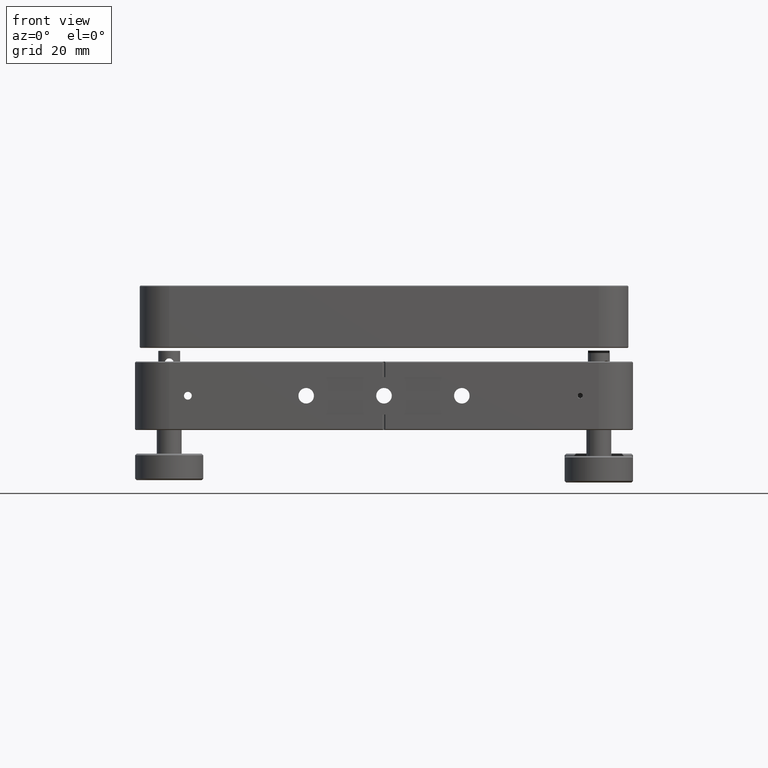
[diagram: clean part render]
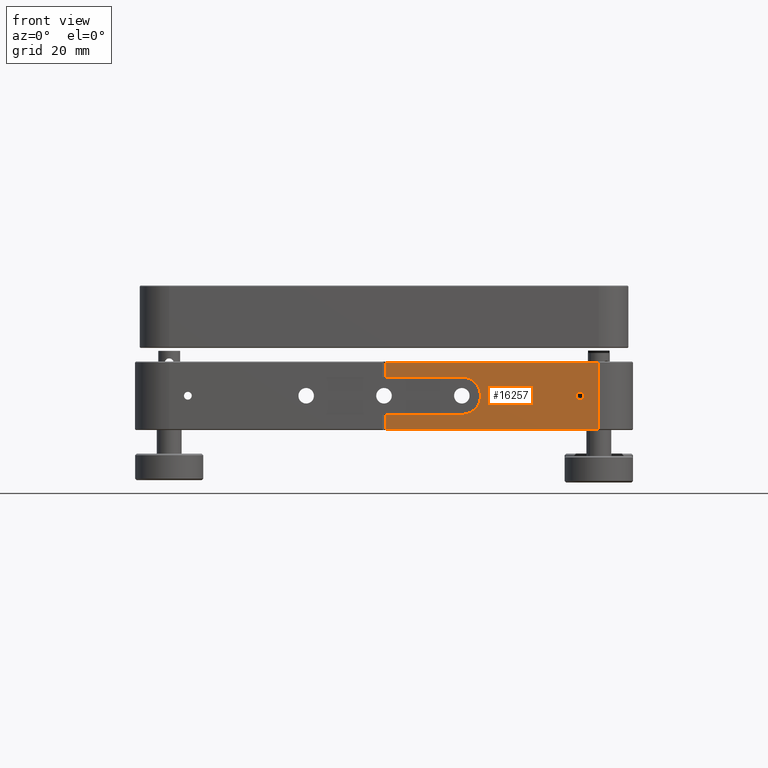
[diagram: same view with one face highlighted and labeled with its STEP entity id]
A machine part, front view. The second image highlights one B-rep face of the part: STEP entity #16257.
In plain terms, the highlighted planar face has unit normal (0, 1, 0).
Its self-contained STEP definition (entity closure, byte-faithful):
#274 = EDGE_CURVE ( 'NONE', #8382, #3429, #1125, .T. ) ;
#449 = EDGE_LOOP ( 'NONE', ( #7910, #1419 ) ) ;
#459 = DIRECTION ( 'NONE',  ( 0.000000000000000000, 0.000000000000000000, -1.000000000000000000 ) ) ;
#888 = CARTESIAN_POINT ( 'NONE',  ( 0.4999999999999935052, -80.00000000000001421, 11.00000000000000000 ) ) ;
#1125 = LINE ( 'NONE', #2353, #14467 ) ;
#1301 = CARTESIAN_POINT ( 'NONE',  ( 0.4999999999999935052, -80.00000000000001421, 10.69999999999994955 ) ) ;
#1419 = ORIENTED_EDGE ( 'NONE', *, *, #6440, .F. ) ;
#2017 = DIRECTION ( 'NONE',  ( -0.000000000000000000, -0.000000000000000000, -1.000000000000000000 ) ) ;
#2067 = EDGE_CURVE ( 'NONE', #13860, #6366, #18403, .T. ) ;
#2262 = DIRECTION ( 'NONE',  ( -0.000000000000000000, -0.000000000000000000, -1.000000000000000000 ) ) ;
#2353 = CARTESIAN_POINT ( 'NONE',  ( 0.4999999999999935052, -80.00000000000001421, 11.00000000000000000 ) ) ;
#2542 = CIRCLE ( 'NONE', #12787, 1.249999999999987121 ) ;
#2610 = LINE ( 'NONE', #3669, #3711 ) ;
#3030 = CIRCLE ( 'NONE', #12364, 6.000000000000000888 ) ;
#3280 = DIRECTION ( 'NONE',  ( -0.000000000000000000, -1.000000000000000000, -0.000000000000000000 ) ) ;
#3429 = VERTEX_POINT ( 'NONE', #8535 ) ;
#3439 = DIRECTION ( 'NONE',  ( 0.000000000000000000, 0.000000000000000000, -1.000000000000000000 ) ) ;
#3669 = CARTESIAN_POINT ( 'NONE',  ( -79.99999999999998579, -80.00000000000001421, -10.69999999999997620 ) ) ;
#3681 = DIRECTION ( 'NONE',  ( -1.000000000000000000, 0.000000000000000000, 0.000000000000000000 ) ) ;
#3711 = VECTOR ( 'NONE', #4037, 1000.000000000000000 ) ;
#3926 = FACE_BOUND ( 'NONE', #449, .T. ) ;
#3940 = AXIS2_PLACEMENT_3D ( 'NONE', #15429, #18350, #11185 ) ;
#4037 = DIRECTION ( 'NONE',  ( 1.000000000000000000, 0.000000000000000000, 0.000000000000000000 ) ) ;
#4043 = VECTOR ( 'NONE', #14280, 1000.000000000000000 ) ;
#4743 = CARTESIAN_POINT ( 'NONE',  ( 24.99999999999999289, -80.00000000000001421, 6.000000000000010658 ) ) ;
#4793 = ORIENTED_EDGE ( 'NONE', *, *, #13825, .F. ) ;
#4838 = EDGE_LOOP ( 'NONE', ( #5289, #8242, #4944, #13289, #4793, #6579, #16481, #11065 ) ) ;
#4944 = ORIENTED_EDGE ( 'NONE', *, *, #16531, .T. ) ;
#5289 = ORIENTED_EDGE ( 'NONE', *, *, #12041, .T. ) ;
#5526 = FACE_OUTER_BOUND ( 'NONE', #4838, .T. ) ;
#5882 = CARTESIAN_POINT ( 'NONE',  ( 25.00000000000000711, -80.00000000000001421, -5.999999999999991118 ) ) ;
#6060 = CARTESIAN_POINT ( 'NONE',  ( 25.00000000000000000, -80.00000000000001421, 1.531726841841384132E-14 ) ) ;
#6366 = VERTEX_POINT ( 'NONE', #9198 ) ;
#6440 = EDGE_CURVE ( 'NONE', #10242, #9850, #10915, .T. ) ;
#6579 = ORIENTED_EDGE ( 'NONE', *, *, #13511, .F. ) ;
#7196 = DIRECTION ( 'NONE',  ( 1.000000000000000000, -0.000000000000000000, 3.122502256758252277E-16 ) ) ;
#7656 = EDGE_CURVE ( 'NONE', #13230, #14742, #9697, .T. ) ;
#7910 = ORIENTED_EDGE ( 'NONE', *, *, #9616, .F. ) ;
#8242 = ORIENTED_EDGE ( 'NONE', *, *, #7656, .T. ) ;
#8382 = VERTEX_POINT ( 'NONE', #15807 ) ;
#8439 = CARTESIAN_POINT ( 'NONE',  ( 69.00000000000002842, -80.00000000000001421, 11.00000000000000000 ) ) ;
#8535 = CARTESIAN_POINT ( 'NONE',  ( 0.4999999999999935052, -80.00000000000001421, -10.69999999999997620 ) ) ;
#9198 = CARTESIAN_POINT ( 'NONE',  ( 0.4999999999999935052, -80.00000000000001421, 6.000000000000003553 ) ) ;
#9334 = CARTESIAN_POINT ( 'NONE',  ( 0.4999999999999935052, -80.00000000000001421, 10.69999999999994955 ) ) ;
#9616 = EDGE_CURVE ( 'NONE', #9850, #10242, #2542, .T. ) ;
#9697 = LINE ( 'NONE', #9334, #12156 ) ;
#9850 = VERTEX_POINT ( 'NONE', #13738 ) ;
#10165 = CARTESIAN_POINT ( 'NONE',  ( 69.00000000000002842, -80.00000000000001421, 10.69999999999994955 ) ) ;
#10242 = VERTEX_POINT ( 'NONE', #11080 ) ;
#10915 = CIRCLE ( 'NONE', #14830, 1.249999999999987121 ) ;
#11065 = ORIENTED_EDGE ( 'NONE', *, *, #18661, .T. ) ;
#11080 = CARTESIAN_POINT ( 'NONE',  ( 63.00000000000002842, -80.00000000000001421, 1.249999999999987121 ) ) ;
#11185 = DIRECTION ( 'NONE',  ( 0.000000000000000000, -0.000000000000000000, 1.000000000000000000 ) ) ;
#11283 = PLANE ( 'NONE',  #3940 ) ;
#11394 = CARTESIAN_POINT ( 'NONE',  ( 69.00000000000002842, -80.00000000000001421, -10.69999999999997620 ) ) ;
#11747 = VECTOR ( 'NONE', #7196, 1000.000000000000000 ) ;
#12041 = EDGE_CURVE ( 'NONE', #14760, #13230, #12859, .T. ) ;
#12156 = VECTOR ( 'NONE', #3681, 1000.000000000000000 ) ;
#12208 = CARTESIAN_POINT ( 'NONE',  ( 63.00000000000002842, -80.00000000000001421, -1.224646799147350495E-16 ) ) ;
#12364 = AXIS2_PLACEMENT_3D ( 'NONE', #6060, #16161, #17465 ) ;
#12787 = AXIS2_PLACEMENT_3D ( 'NONE', #14974, #3280, #459 ) ;
#12852 = VERTEX_POINT ( 'NONE', #17556 ) ;
#12859 = LINE ( 'NONE', #8439, #4043 ) ;
#13230 = VERTEX_POINT ( 'NONE', #10165 ) ;
#13289 = ORIENTED_EDGE ( 'NONE', *, *, #2067, .F. ) ;
#13511 = EDGE_CURVE ( 'NONE', #8382, #12852, #14181, .T. ) ;
#13738 = CARTESIAN_POINT ( 'NONE',  ( 63.00000000000002842, -80.00000000000001421, -1.249999999999987343 ) ) ;
#13768 = VECTOR ( 'NONE', #16901, 1000.000000000000000 ) ;
#13804 = LINE ( 'NONE', #888, #15046 ) ;
#13825 = EDGE_CURVE ( 'NONE', #12852, #13860, #3030, .T. ) ;
#13860 = VERTEX_POINT ( 'NONE', #4743 ) ;
#14059 = CARTESIAN_POINT ( 'NONE',  ( 24.99999999999999289, -80.00000000000001421, 6.000000000000010658 ) ) ;
#14181 = LINE ( 'NONE', #5882, #11747 ) ;
#14280 = DIRECTION ( 'NONE',  ( -0.000000000000000000, -0.000000000000000000, 1.000000000000000000 ) ) ;
#14467 = VECTOR ( 'NONE', #2262, 1000.000000000000000 ) ;
#14742 = VERTEX_POINT ( 'NONE', #1301 ) ;
#14760 = VERTEX_POINT ( 'NONE', #11394 ) ;
#14830 = AXIS2_PLACEMENT_3D ( 'NONE', #12208, #17958, #3439 ) ;
#14974 = CARTESIAN_POINT ( 'NONE',  ( 63.00000000000002842, -80.00000000000001421, -1.224646799147350495E-16 ) ) ;
#15046 = VECTOR ( 'NONE', #2017, 1000.000000000000000 ) ;
#15429 = CARTESIAN_POINT ( 'NONE',  ( -79.99999999999998579, -80.00000000000001421, 11.00000000000000000 ) ) ;
#15807 = CARTESIAN_POINT ( 'NONE',  ( 0.4999999999999935052, -80.00000000000001421, -5.999999999999998224 ) ) ;
#16161 = DIRECTION ( 'NONE',  ( 0.000000000000000000, -1.000000000000000000, 0.000000000000000000 ) ) ;
#16257 = ADVANCED_FACE ( 'NONE', ( #3926, #5526 ), #11283, .F. ) ;
#16481 = ORIENTED_EDGE ( 'NONE', *, *, #274, .T. ) ;
#16531 = EDGE_CURVE ( 'NONE', #14742, #6366, #13804, .T. ) ;
#16901 = DIRECTION ( 'NONE',  ( -1.000000000000000000, 0.000000000000000000, -3.122502256758253263E-16 ) ) ;
#17465 = DIRECTION ( 'NONE',  ( 0.000000000000000000, 0.000000000000000000, -1.000000000000000000 ) ) ;
#17556 = CARTESIAN_POINT ( 'NONE',  ( 25.00000000000000711, -80.00000000000001421, -5.999999999999991118 ) ) ;
#17958 = DIRECTION ( 'NONE',  ( -0.000000000000000000, -1.000000000000000000, -0.000000000000000000 ) ) ;
#18350 = DIRECTION ( 'NONE',  ( 0.000000000000000000, 1.000000000000000000, 0.000000000000000000 ) ) ;
#18403 = LINE ( 'NONE', #14059, #13768 ) ;
#18661 = EDGE_CURVE ( 'NONE', #3429, #14760, #2610, .T. ) ;